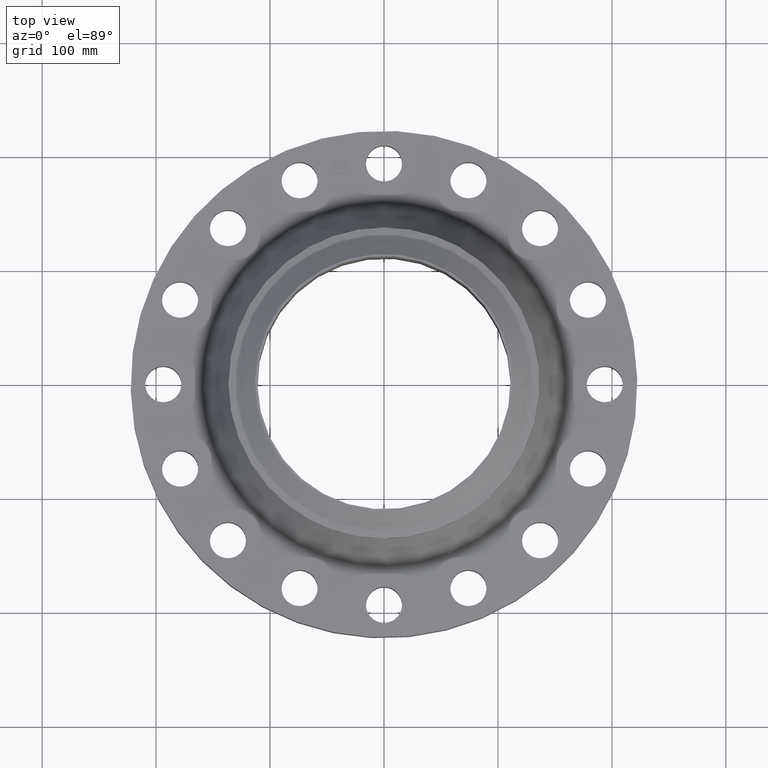
[diagram: clean part render]
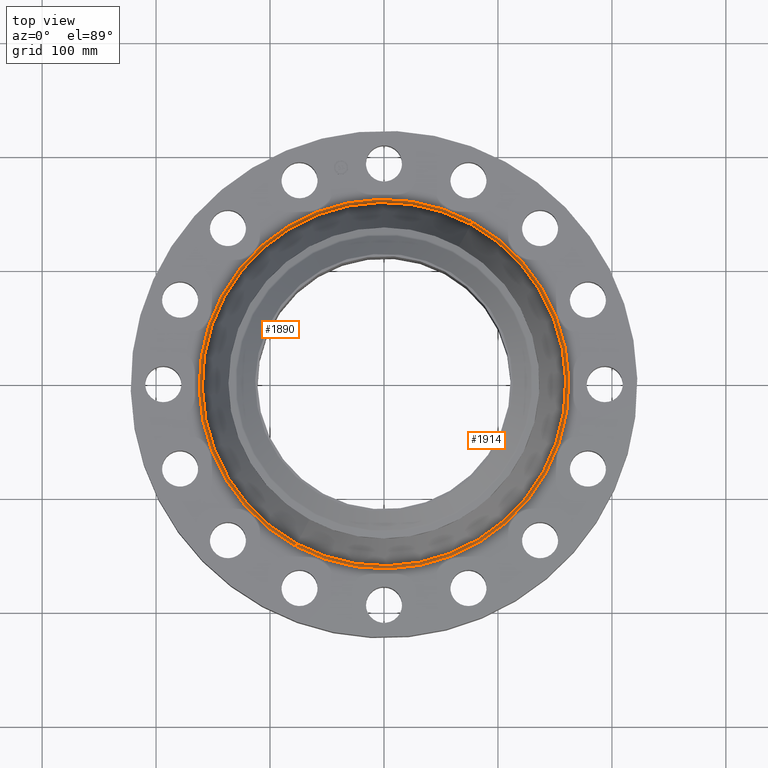
[diagram: same view with one multi-face feature highlighted, each face labeled with its STEP entity id]
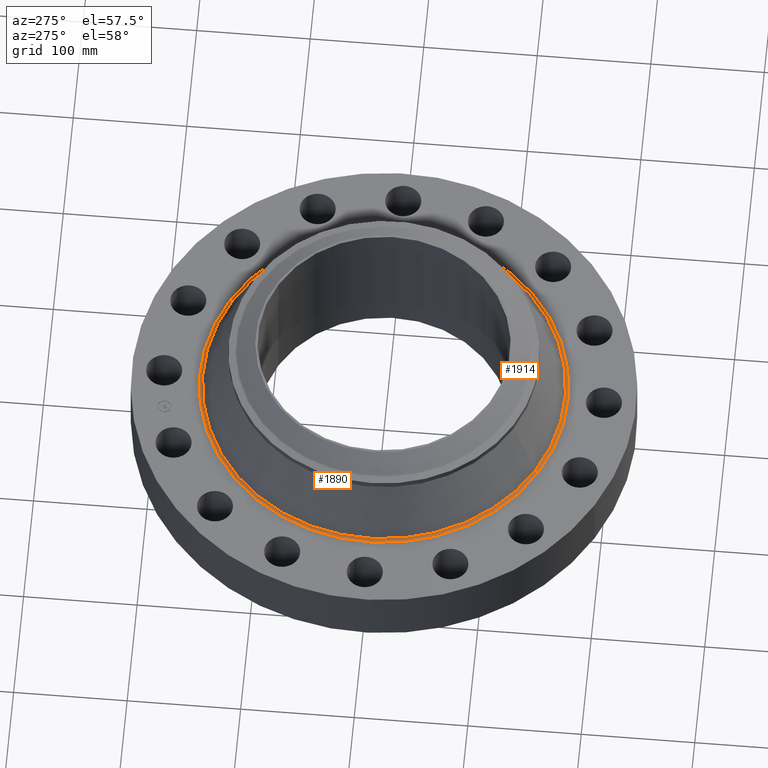
[diagram: same view with one multi-face feature highlighted, each face labeled with its STEP entity id]
A machine part, top view. The highlighted faces form ONE feature: a constant-radius fillet chain: 2 tangent blend faces with common blend radius 3.048 mm. The faces share edges in the B-rep.
A second angle (auxiliary view) of the same feature is appended — it is thin or edge-on in the first view.
Their STEP definitions:
[1] entity #1890 (Torus):
#675=AXIS2_PLACEMENT_3D('Circle Axis2P3D',#673,#674,$) ;
#1863=AXIS2_PLACEMENT_3D('Torus Axis2P3D',#1860,#1861,#1862) ;
#1867=AXIS2_PLACEMENT_3D('Circle Axis2P3D',#1865,#1866,$) ;
#1874=AXIS2_PLACEMENT_3D('Circle Axis2P3D',#1872,#1873,$) ;
#1881=AXIS2_PLACEMENT_3D('Circle Axis2P3D',#1879,#1880,$) ;
#673=CARTESIAN_POINT('Axis2P3D Location',(-4.36631308537E-011,1.71884204158E-011,2.12000000001)) ;
#677=CARTESIAN_POINT('Vertex',(-3.06151844407,-5.60407192166,2.12000000001)) ;
#679=CARTESIAN_POINT('Vertex',(3.06151844407,5.60407192166,2.12000000001)) ;
#1860=CARTESIAN_POINT('Axis2P3D Location',(0.,0.,2.24000000001)) ;
#1865=CARTESIAN_POINT('Axis2P3D Location',(-3.06151844407,-5.60407192166,2.24000000001)) ;
#1869=CARTESIAN_POINT('Vertex',(-3.00956475797,-5.50897133715,2.18845687897)) ;
#1872=CARTESIAN_POINT('Axis2P3D Location',(0.,0.,2.18845687897)) ;
#1876=CARTESIAN_POINT('Vertex',(3.00956475797,5.50897133715,2.18845687897)) ;
#1879=CARTESIAN_POINT('Axis2P3D Location',(3.06151844407,5.60407192166,2.24000000001)) ;
#674=DIRECTION('Axis2P3D Direction',(0.,0.,-0.0393700787402)) ;
#1861=DIRECTION('Axis2P3D Direction',(0.,0.,-0.0393700787402)) ;
#1862=DIRECTION('Axis2P3D XDirection',(-0.0188750212049,-0.0345504945626,0.)) ;
#1866=DIRECTION('Axis2P3D Direction',(0.0345504945626,-0.0188750212049,0.)) ;
#1873=DIRECTION('Axis2P3D Direction',(-0.,0.,-0.0393700787402)) ;
#1880=DIRECTION('Axis2P3D Direction',(-0.0345504945626,0.0188750212049,0.)) ;
#1885=ORIENTED_EDGE('',*,*,#681,.F.) ;
#1886=ORIENTED_EDGE('',*,*,#1871,.T.) ;
#1887=ORIENTED_EDGE('',*,*,#1878,.T.) ;
#1888=ORIENTED_EDGE('',*,*,#1883,.F.) ;
#1890=ADVANCED_FACE('PartBody',(#1889),#1864,.F.) ;
#676=CIRCLE('generated circle',#675,6.38580592301) ;
#1868=CIRCLE('generated circle',#1867,0.12) ;
#1875=CIRCLE('generated circle',#1874,6.27743938449) ;
#1882=CIRCLE('generated circle',#1881,0.12) ;
#1864=TOROIDAL_SURFACE('homeo Torus',#1863,6.38580592302,0.12) ;
#681=EDGE_CURVE('',#678,#680,#676,.T.) ;
#1871=EDGE_CURVE('',#678,#1870,#1868,.T.) ;
#1878=EDGE_CURVE('',#1870,#1877,#1875,.T.) ;
#1883=EDGE_CURVE('',#680,#1877,#1882,.T.) ;
#1884=EDGE_LOOP('',(#1885,#1886,#1887,#1888)) ;
#1889=FACE_OUTER_BOUND('',#1884,.T.) ;
#678=VERTEX_POINT('',#677) ;
#680=VERTEX_POINT('',#679) ;
#1870=VERTEX_POINT('',#1869) ;
#1877=VERTEX_POINT('',#1876) ;
[2] entity #1914 (Torus):
#684=AXIS2_PLACEMENT_3D('Circle Axis2P3D',#682,#683,$) ;
#1867=AXIS2_PLACEMENT_3D('Circle Axis2P3D',#1865,#1866,$) ;
#1881=AXIS2_PLACEMENT_3D('Circle Axis2P3D',#1879,#1880,$) ;
#1901=AXIS2_PLACEMENT_3D('Torus Axis2P3D',#1898,#1899,#1900) ;
#1905=AXIS2_PLACEMENT_3D('Circle Axis2P3D',#1903,#1904,$) ;
#677=CARTESIAN_POINT('Vertex',(-3.06151844407,-5.60407192166,2.12000000001)) ;
#679=CARTESIAN_POINT('Vertex',(3.06151844407,5.60407192166,2.12000000001)) ;
#682=CARTESIAN_POINT('Axis2P3D Location',(1.28121485424E-011,-1.36659187903E-011,2.12000000001)) ;
#1865=CARTESIAN_POINT('Axis2P3D Location',(-3.06151844407,-5.60407192166,2.24000000001)) ;
#1869=CARTESIAN_POINT('Vertex',(-3.00956475797,-5.50897133715,2.18845687897)) ;
#1876=CARTESIAN_POINT('Vertex',(3.00956475797,5.50897133715,2.18845687897)) ;
#1879=CARTESIAN_POINT('Axis2P3D Location',(3.06151844407,5.60407192166,2.24000000001)) ;
#1898=CARTESIAN_POINT('Axis2P3D Location',(0.,0.,2.24000000001)) ;
#1903=CARTESIAN_POINT('Axis2P3D Location',(0.,0.,2.18845687897)) ;
#683=DIRECTION('Axis2P3D Direction',(0.,0.,-0.0393700787402)) ;
#1866=DIRECTION('Axis2P3D Direction',(0.0345504945626,-0.0188750212049,0.)) ;
#1880=DIRECTION('Axis2P3D Direction',(-0.0345504945626,0.0188750212049,0.)) ;
#1899=DIRECTION('Axis2P3D Direction',(0.,0.,-0.0393700787402)) ;
#1900=DIRECTION('Axis2P3D XDirection',(0.0188750212049,0.0345504945626,0.)) ;
#1904=DIRECTION('Axis2P3D Direction',(-0.,0.,-0.0393700787402)) ;
#1909=ORIENTED_EDGE('',*,*,#686,.F.) ;
#1910=ORIENTED_EDGE('',*,*,#1883,.T.) ;
#1911=ORIENTED_EDGE('',*,*,#1907,.T.) ;
#1912=ORIENTED_EDGE('',*,*,#1871,.F.) ;
#1914=ADVANCED_FACE('PartBody',(#1913),#1902,.F.) ;
#685=CIRCLE('generated circle',#684,6.38580592301) ;
#1868=CIRCLE('generated circle',#1867,0.12) ;
#1882=CIRCLE('generated circle',#1881,0.12) ;
#1906=CIRCLE('generated circle',#1905,6.27743938449) ;
#1902=TOROIDAL_SURFACE('homeo Torus',#1901,6.38580592302,0.12) ;
#686=EDGE_CURVE('',#680,#678,#685,.T.) ;
#1871=EDGE_CURVE('',#678,#1870,#1868,.T.) ;
#1883=EDGE_CURVE('',#680,#1877,#1882,.T.) ;
#1907=EDGE_CURVE('',#1877,#1870,#1906,.T.) ;
#1908=EDGE_LOOP('',(#1909,#1910,#1911,#1912)) ;
#1913=FACE_OUTER_BOUND('',#1908,.T.) ;
#678=VERTEX_POINT('',#677) ;
#680=VERTEX_POINT('',#679) ;
#1870=VERTEX_POINT('',#1869) ;
#1877=VERTEX_POINT('',#1876) ;